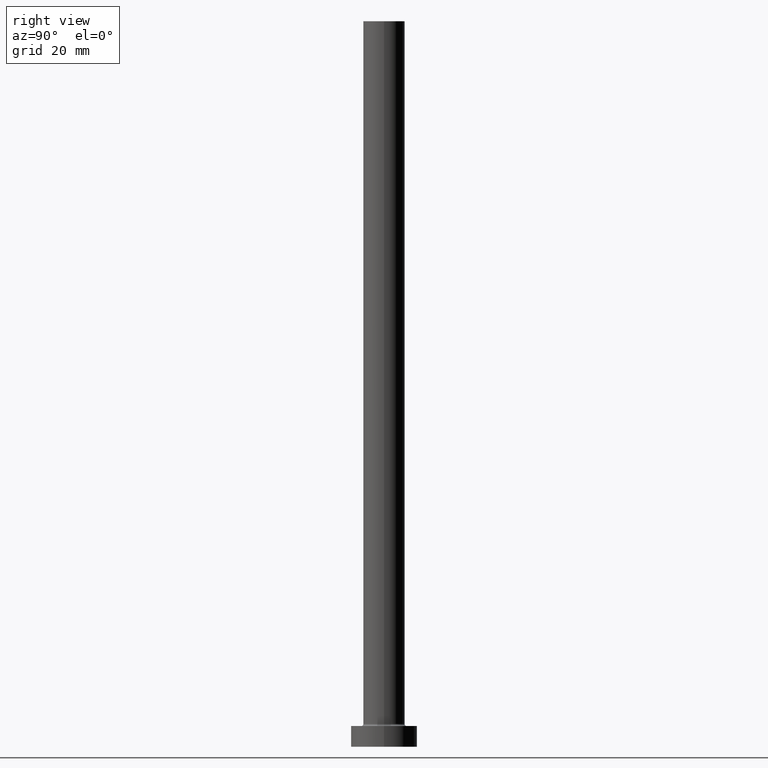
[diagram: clean part render]
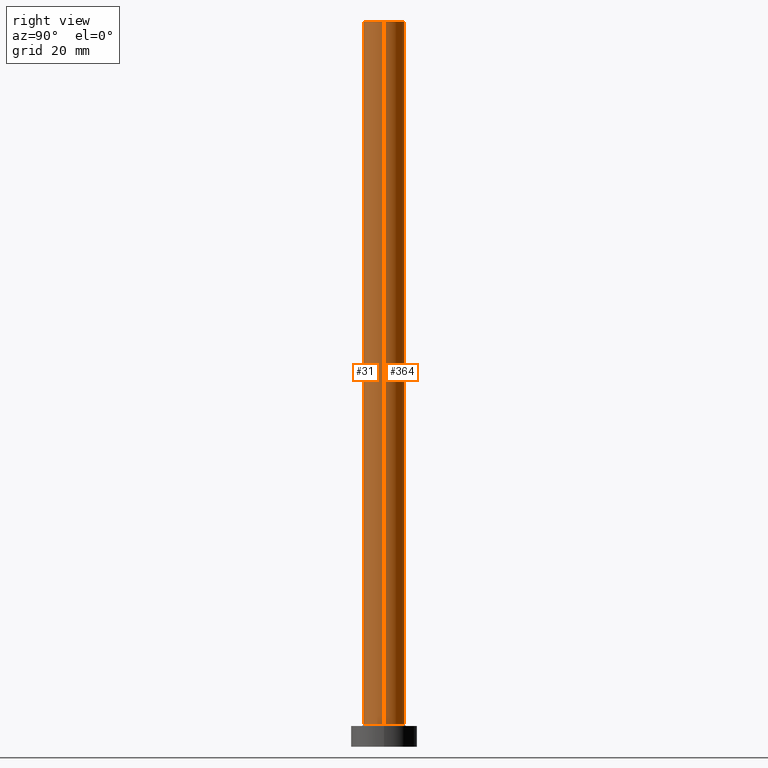
[diagram: same view with one multi-face feature highlighted, each face labeled with its STEP entity id]
A machine part, right view. The highlighted faces form ONE feature: a constant-radius fillet chain: 2 tangent blend faces with common blend radius 5 mm. The faces share edges in the B-rep.
Their STEP definitions:
[1] entity #31 (Cylinder):
#9 = AXIS2_PLACEMENT_3D ( 'NONE', #166, #143, #237 ) ;
#19 = CARTESIAN_POINT ( 'NONE',  ( -5.000000000000000000, 0.000000000000000000, 175.0000000000000284 ) ) ;
#25 = CIRCLE ( 'NONE', #453, 5.000000000000000000 ) ;
#29 = VERTEX_POINT ( 'NONE', #103 ) ;
#31 = ADVANCED_FACE ( 'NONE', ( #312 ), #267, .T. ) ;
#35 = EDGE_CURVE ( 'NONE', #249, #29, #25, .T. ) ;
#39 = ORIENTED_EDGE ( 'NONE', *, *, #295, .T. ) ;
#64 = EDGE_LOOP ( 'NONE', ( #328, #349, #39, #95 ) ) ;
#78 = DIRECTION ( 'NONE',  ( -0.000000000000000000, -0.000000000000000000, -1.000000000000000000 ) ) ;
#88 = CIRCLE ( 'NONE', #266, 5.000000000000000000 ) ;
#95 = ORIENTED_EDGE ( 'NONE', *, *, #35, .T. ) ;
#103 = CARTESIAN_POINT ( 'NONE',  ( 5.000000000000000000, 6.123233995736766282E-16, 5.500000000000005329 ) ) ;
#126 = DIRECTION ( 'NONE',  ( 0.000000000000000000, 0.000000000000000000, 1.000000000000000000 ) ) ;
#143 = DIRECTION ( 'NONE',  ( -0.000000000000000000, -0.000000000000000000, -1.000000000000000000 ) ) ;
#146 = CARTESIAN_POINT ( 'NONE',  ( 5.000000000000000000, 6.123233995736766282E-16, 175.0000000000000284 ) ) ;
#148 = DIRECTION ( 'NONE',  ( -0.000000000000000000, -0.000000000000000000, -1.000000000000000000 ) ) ;
#166 = CARTESIAN_POINT ( 'NONE',  ( 0.000000000000000000, 0.000000000000000000, 175.0000000000000284 ) ) ;
#176 = CARTESIAN_POINT ( 'NONE',  ( 0.000000000000000000, 0.000000000000000000, 5.500000000000005329 ) ) ;
#215 = CARTESIAN_POINT ( 'NONE',  ( -5.000000000000000000, 0.000000000000000000, 5.500000000000005329 ) ) ;
#220 = VECTOR ( 'NONE', #148, 1000.000000000000000 ) ;
#237 = DIRECTION ( 'NONE',  ( -1.000000000000000000, 0.000000000000000000, 0.000000000000000000 ) ) ;
#249 = VERTEX_POINT ( 'NONE', #215 ) ;
#256 = LINE ( 'NONE', #404, #220 ) ;
#257 = DIRECTION ( 'NONE',  ( 1.000000000000000000, 0.000000000000000000, 0.000000000000000000 ) ) ;
#260 = EDGE_CURVE ( 'NONE', #385, #29, #458, .T. ) ;
#266 = AXIS2_PLACEMENT_3D ( 'NONE', #434, #126, #257 ) ;
#267 = CYLINDRICAL_SURFACE ( 'NONE', #9, 5.000000000000000000 ) ;
#295 = EDGE_CURVE ( 'NONE', #400, #249, #256, .T. ) ;
#312 = FACE_OUTER_BOUND ( 'NONE', #64, .T. ) ;
#328 = ORIENTED_EDGE ( 'NONE', *, *, #260, .F. ) ;
#346 = VECTOR ( 'NONE', #78, 1000.000000000000000 ) ;
#349 = ORIENTED_EDGE ( 'NONE', *, *, #376, .F. ) ;
#376 = EDGE_CURVE ( 'NONE', #400, #385, #88, .T. ) ;
#384 = DIRECTION ( 'NONE',  ( 1.000000000000000000, 0.000000000000000000, 0.000000000000000000 ) ) ;
#385 = VERTEX_POINT ( 'NONE', #420 ) ;
#400 = VERTEX_POINT ( 'NONE', #19 ) ;
#404 = CARTESIAN_POINT ( 'NONE',  ( -5.000000000000000000, 0.000000000000000000, 175.0000000000000284 ) ) ;
#420 = CARTESIAN_POINT ( 'NONE',  ( 5.000000000000000000, 6.123233995736766282E-16, 175.0000000000000284 ) ) ;
#434 = CARTESIAN_POINT ( 'NONE',  ( 0.000000000000000000, 0.000000000000000000, 175.0000000000000284 ) ) ;
#449 = DIRECTION ( 'NONE',  ( 0.000000000000000000, 0.000000000000000000, 1.000000000000000000 ) ) ;
#453 = AXIS2_PLACEMENT_3D ( 'NONE', #176, #449, #384 ) ;
#458 = LINE ( 'NONE', #146, #346 ) ;
[2] entity #364 (Cylinder):
#19 = CARTESIAN_POINT ( 'NONE',  ( -5.000000000000000000, 0.000000000000000000, 175.0000000000000284 ) ) ;
#24 = ORIENTED_EDGE ( 'NONE', *, *, #155, .F. ) ;
#29 = VERTEX_POINT ( 'NONE', #103 ) ;
#47 = CARTESIAN_POINT ( 'NONE',  ( 0.000000000000000000, 0.000000000000000000, 5.500000000000005329 ) ) ;
#49 = CARTESIAN_POINT ( 'NONE',  ( 0.000000000000000000, 0.000000000000000000, 175.0000000000000284 ) ) ;
#53 = DIRECTION ( 'NONE',  ( -1.000000000000000000, 0.000000000000000000, 0.000000000000000000 ) ) ;
#54 = AXIS2_PLACEMENT_3D ( 'NONE', #49, #180, #116 ) ;
#74 = ORIENTED_EDGE ( 'NONE', *, *, #295, .F. ) ;
#78 = DIRECTION ( 'NONE',  ( -0.000000000000000000, -0.000000000000000000, -1.000000000000000000 ) ) ;
#86 = CARTESIAN_POINT ( 'NONE',  ( 0.000000000000000000, 0.000000000000000000, 175.0000000000000284 ) ) ;
#92 = DIRECTION ( 'NONE',  ( -0.000000000000000000, -0.000000000000000000, -1.000000000000000000 ) ) ;
#94 = AXIS2_PLACEMENT_3D ( 'NONE', #47, #186, #123 ) ;
#103 = CARTESIAN_POINT ( 'NONE',  ( 5.000000000000000000, 6.123233995736766282E-16, 5.500000000000005329 ) ) ;
#116 = DIRECTION ( 'NONE',  ( 1.000000000000000000, 0.000000000000000000, 0.000000000000000000 ) ) ;
#123 = DIRECTION ( 'NONE',  ( 1.000000000000000000, 0.000000000000000000, 0.000000000000000000 ) ) ;
#133 = CIRCLE ( 'NONE', #94, 5.000000000000000000 ) ;
#146 = CARTESIAN_POINT ( 'NONE',  ( 5.000000000000000000, 6.123233995736766282E-16, 175.0000000000000284 ) ) ;
#148 = DIRECTION ( 'NONE',  ( -0.000000000000000000, -0.000000000000000000, -1.000000000000000000 ) ) ;
#149 = EDGE_LOOP ( 'NONE', ( #24, #394, #317, #74 ) ) ;
#155 = EDGE_CURVE ( 'NONE', #385, #400, #283, .T. ) ;
#180 = DIRECTION ( 'NONE',  ( 0.000000000000000000, 0.000000000000000000, 1.000000000000000000 ) ) ;
#186 = DIRECTION ( 'NONE',  ( 0.000000000000000000, 0.000000000000000000, 1.000000000000000000 ) ) ;
#215 = CARTESIAN_POINT ( 'NONE',  ( -5.000000000000000000, 0.000000000000000000, 5.500000000000005329 ) ) ;
#220 = VECTOR ( 'NONE', #148, 1000.000000000000000 ) ;
#239 = AXIS2_PLACEMENT_3D ( 'NONE', #86, #92, #53 ) ;
#249 = VERTEX_POINT ( 'NONE', #215 ) ;
#256 = LINE ( 'NONE', #404, #220 ) ;
#260 = EDGE_CURVE ( 'NONE', #385, #29, #458, .T. ) ;
#283 = CIRCLE ( 'NONE', #54, 5.000000000000000000 ) ;
#289 = EDGE_CURVE ( 'NONE', #29, #249, #133, .T. ) ;
#295 = EDGE_CURVE ( 'NONE', #400, #249, #256, .T. ) ;
#317 = ORIENTED_EDGE ( 'NONE', *, *, #289, .T. ) ;
#346 = VECTOR ( 'NONE', #78, 1000.000000000000000 ) ;
#364 = ADVANCED_FACE ( 'NONE', ( #412 ), #443, .T. ) ;
#385 = VERTEX_POINT ( 'NONE', #420 ) ;
#394 = ORIENTED_EDGE ( 'NONE', *, *, #260, .T. ) ;
#400 = VERTEX_POINT ( 'NONE', #19 ) ;
#404 = CARTESIAN_POINT ( 'NONE',  ( -5.000000000000000000, 0.000000000000000000, 175.0000000000000284 ) ) ;
#412 = FACE_OUTER_BOUND ( 'NONE', #149, .T. ) ;
#420 = CARTESIAN_POINT ( 'NONE',  ( 5.000000000000000000, 6.123233995736766282E-16, 175.0000000000000284 ) ) ;
#443 = CYLINDRICAL_SURFACE ( 'NONE', #239, 5.000000000000000000 ) ;
#458 = LINE ( 'NONE', #146, #346 ) ;